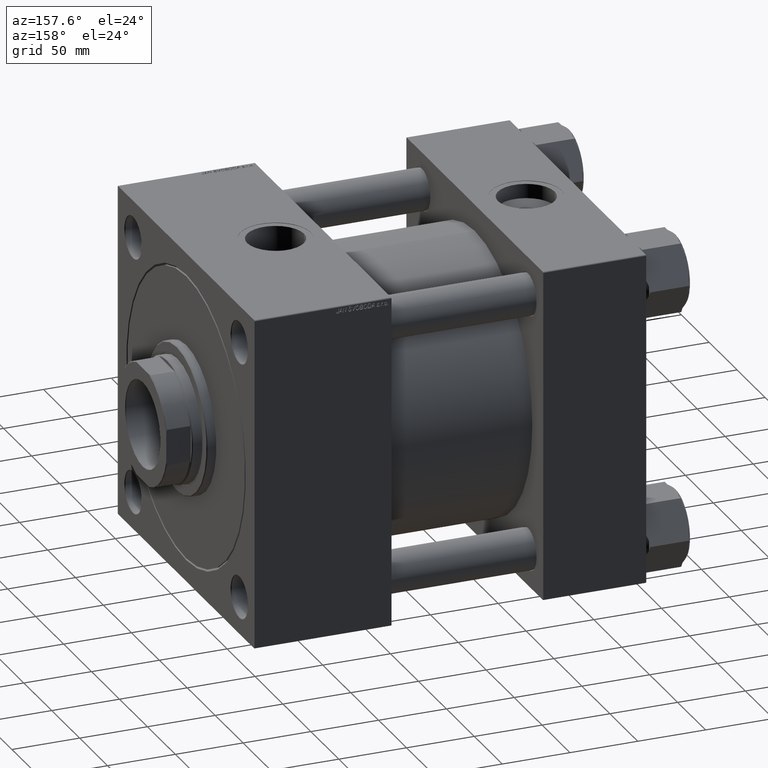
[diagram: clean part render]
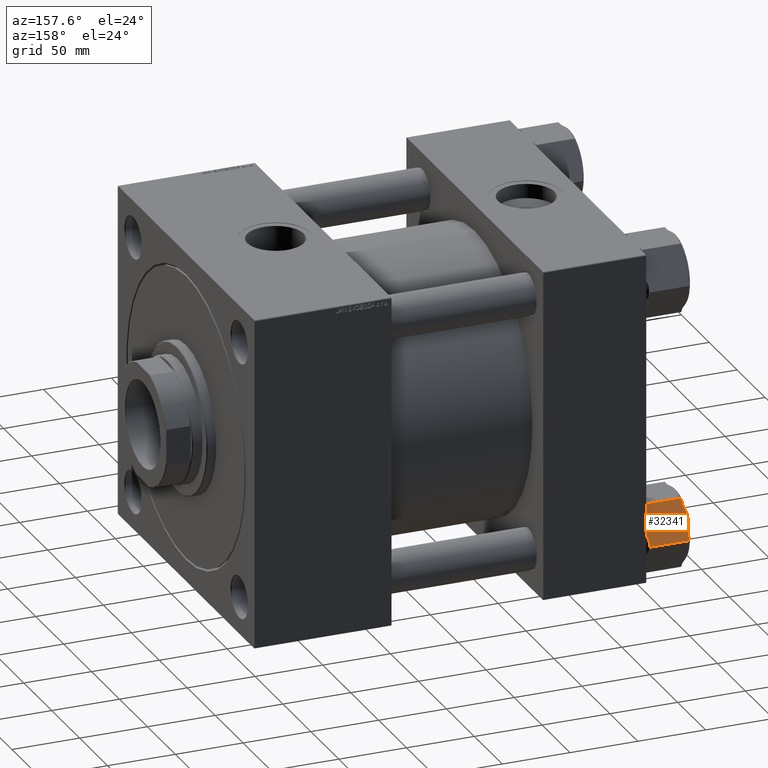
[diagram: same view with one face highlighted and labeled with its STEP entity id]
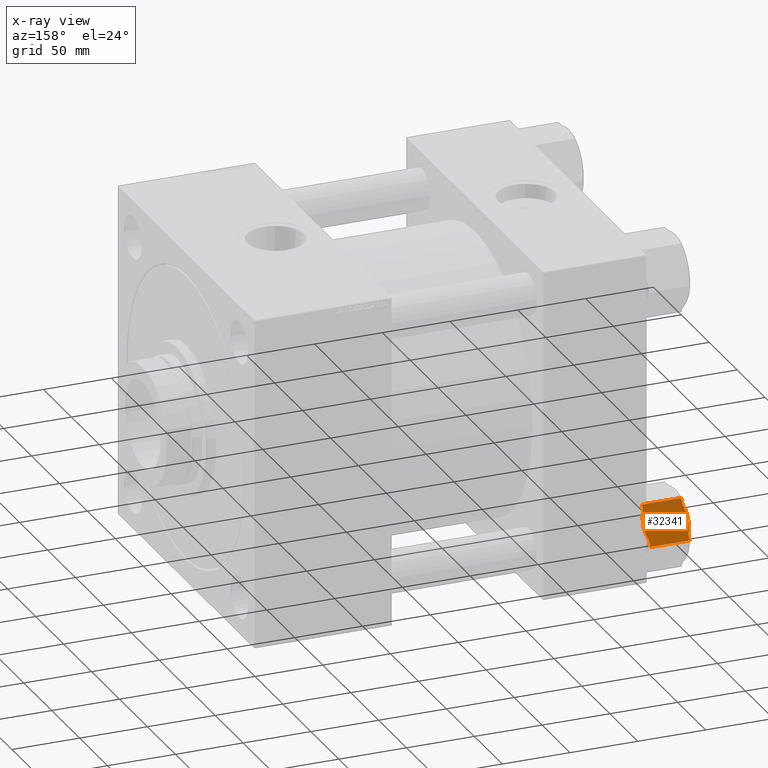
[diagram: x-ray of the same camera — body ghosted, the highlighted face saturated]
A machine part, auxiliary view. The second image highlights one B-rep face of the part: STEP entity #32341.
The next image is the same camera in x-ray: the body ghosted, the highlighted face saturated — about 0% of this face is hidden behind the body in this view.
In plain terms, the highlighted planar face has unit normal (-0, -0.866, -0.5).
Its self-contained STEP definition (entity closure, byte-faithful):
#378 = AXIS2_PLACEMENT_3D ( 'NONE', #37311, #48099, #20914 ) ;
#515 = B_SPLINE_CURVE_WITH_KNOTS ( 'NONE', 3,
 ( #27525, #31886, #47532, #43912, #12145, #40077 ),
 .UNSPECIFIED., .F., .F.,
 ( 4, 2, 4 ),
 ( 0.01051765955737597041, 0.01578241387615344007, 0.02104716819493090973 ),
 .UNSPECIFIED. ) ;
#829 = EDGE_CURVE ( 'NONE', #43507, #5416, #12755, .T. ) ;
#1455 = VERTEX_POINT ( 'NONE', #45876 ) ;
#1584 = VERTEX_POINT ( 'NONE', #47403 ) ;
#1804 = CARTESIAN_POINT ( 'NONE',  ( 26.54466212044818363, 5.326641457824901060, -31.62197758747890930 ) ) ;
#2408 = VERTEX_POINT ( 'NONE', #10961 ) ;
#3762 = LINE ( 'NONE', #19403, #6872 ) ;
#4090 = CARTESIAN_POINT ( 'NONE',  ( 24.41248883551437032, 9.019673917871283919, -0.3601606535146220089 ) ) ;
#4602 = ORIENTED_EDGE ( 'NONE', *, *, #14983, .F. ) ;
#5275 = PLANE ( 'NONE',  #378 ) ;
#5371 = B_SPLINE_CURVE_WITH_KNOTS ( 'NONE', 3,
 ( #41516, #13857, #18197, #36921, #1804, #33813 ),
 .UNSPECIFIED., .F., .F.,
 ( 4, 2, 4 ),
 ( 0.01051765955737592358, 0.01578241387615337762, 0.02104716819493083341 ),
 .UNSPECIFIED. ) ;
#5416 = VERTEX_POINT ( 'NONE', #25427 ) ;
#5710 = VECTOR ( 'NONE', #37666, 1000.000000000000114 ) ;
#5887 = LINE ( 'NONE', #22032, #5710 ) ;
#6493 = CARTESIAN_POINT ( 'NONE',  ( 21.32649141810932747, 14.36477823684317734, -32.95327330804746424 ) ) ;
#6872 = VECTOR ( 'NONE', #35028, 1000.000000000000114 ) ;
#7565 = ORIENTED_EDGE ( 'NONE', *, *, #49274, .F. ) ;
#7661 = CARTESIAN_POINT ( 'NONE',  ( 26.54539380551817374, 5.325374142108530329, -1.378568830542540313 ) ) ;
#8047 = VERTEX_POINT ( 'NONE', #10485 ) ;
#8346 = CARTESIAN_POINT ( 'NONE',  ( 29.62000000000000810, -6.572692906582623186E-15, -33.00000000000000000 ) ) ;
#10485 = CARTESIAN_POINT ( 'NONE',  ( 29.62000000000000810, -6.572692906582623186E-15, -2.000000000000001776 ) ) ;
#10961 = CARTESIAN_POINT ( 'NONE',  ( 27.37752578299570416, 3.884079278514688927, -2.000000000000000000 ) ) ;
#11512 = CARTESIAN_POINT ( 'NONE',  ( 27.37752578299570416, 3.884079278514688927, -2.000000000000000000 ) ) ;
#11700 = ORIENTED_EDGE ( 'NONE', *, *, #48517, .F. ) ;
#12145 = CARTESIAN_POINT ( 'NONE',  ( 17.88533787955183385, 20.32503100227017612, -1.378022412521090478 ) ) ;
#12444 = DIRECTION ( 'NONE',  ( -0.000000000000000000, -0.000000000000000000, 1.000000000000000000 ) ) ;
#12755 = LINE ( 'NONE', #35584, #38009 ) ;
#13857 = CARTESIAN_POINT ( 'NONE',  ( 23.10724479875434412, 11.28042290581595175, -32.99999999999998579 ) ) ;
#13940 = VERTEX_POINT ( 'NONE', #30524 ) ;
#14576 = EDGE_CURVE ( 'NONE', #1455, #8047, #16315, .T. ) ;
#14983 = EDGE_CURVE ( 'NONE', #13940, #1584, #5371, .T. ) ;
#16315 = LINE ( 'NONE', #8346, #25017 ) ;
#16865 = ORIENTED_EDGE ( 'NONE', *, *, #31419, .F. ) ;
#17459 = ORIENTED_EDGE ( 'NONE', *, *, #36845, .F. ) ;
#17795 = CARTESIAN_POINT ( 'NONE',  ( 17.88460619448185440, 20.32629831798652376, -31.62143116945745902 ) ) ;
#18197 = CARTESIAN_POINT ( 'NONE',  ( 23.98159980063226016, 9.765995618711439619, -32.81261637259790831 ) ) ;
#18914 = VERTEX_POINT ( 'NONE', #25396 ) ;
#19403 = CARTESIAN_POINT ( 'NONE',  ( 14.81000000000000583, 25.65167246009508872, -2.000000000000001776 ) ) ;
#20914 = DIRECTION ( 'NONE',  ( 0.4999999999999997224, -0.8660254037844388186, 0.000000000000000000 ) ) ;
#21694 = LINE ( 'NONE', #37833, #49142 ) ;
#22032 = CARTESIAN_POINT ( 'NONE',  ( 14.81000000000000583, 25.65167246009508872, -31.00000000000000000 ) ) ;
#22227 = ORIENTED_EDGE ( 'NONE', *, *, #829, .T. ) ;
#22330 = CARTESIAN_POINT ( 'NONE',  ( 22.21500000000001762, 12.82583623004753726, 0.000000000000000000 ) ) ;
#22988 = ORIENTED_EDGE ( 'NONE', *, *, #28771, .F. ) ;
#23299 = CARTESIAN_POINT ( 'NONE',  ( 25.70144162350698025, 6.787142200510530188, -0.8774574461467135045 ) ) ;
#24268 = ORIENTED_EDGE ( 'NONE', *, *, #14576, .F. ) ;
#25017 = VECTOR ( 'NONE', #12444, 1000.000000000000000 ) ;
#25396 = CARTESIAN_POINT ( 'NONE',  ( 17.05247421700432398, 21.76759318158037715, -2.000000000000000000 ) ) ;
#25427 = CARTESIAN_POINT ( 'NONE',  ( 14.81000000000000583, 25.65167246009508872, -2.000000000000001776 ) ) ;
#25716 = CARTESIAN_POINT ( 'NONE',  ( 17.05247421700433108, 21.76759318158035938, -31.00000000000000000 ) ) ;
#25854 = EDGE_CURVE ( 'NONE', #18914, #5416, #41395, .T. ) ;
#25975 = CARTESIAN_POINT ( 'NONE',  ( 20.45100301642624174, 15.88116862999554968, -32.77317423454463352 ) ) ;
#27382 = DIRECTION ( 'NONE',  ( -0.000000000000000000, -0.000000000000000000, 1.000000000000000000 ) ) ;
#27525 = CARTESIAN_POINT ( 'NONE',  ( 22.21500000000001762, 12.82583623004753726, 0.000000000000000000 ) ) ;
#28406 = VERTEX_POINT ( 'NONE', #49454 ) ;
#28725 = ORIENTED_EDGE ( 'NONE', *, *, #34477, .F. ) ;
#28771 = EDGE_CURVE ( 'NONE', #1584, #1455, #21694, .T. ) ;
#29061 = CARTESIAN_POINT ( 'NONE',  ( 21.76940353278334328, 13.59763195093999855, -32.99999999999999289 ) ) ;
#30524 = CARTESIAN_POINT ( 'NONE',  ( 22.21500000000000696, 12.82583623004752837, -33.00000000000000000 ) ) ;
#31419 = EDGE_CURVE ( 'NONE', #8047, #2408, #3762, .T. ) ;
#31558 = EDGE_LOOP ( 'NONE', ( #7565, #22227, #34869, #28725, #17459, #16865, #24268, #22988, #4602, #11700 ) ) ;
#31886 = CARTESIAN_POINT ( 'NONE',  ( 21.32275520124567336, 14.37124955427912454, 5.519266684309019432E-15 ) ) ;
#32017 = CARTESIAN_POINT ( 'NONE',  ( 22.21500000000001762, 12.82583623004753726, 0.000000000000000000 ) ) ;
#32341 = ADVANCED_FACE ( 'NONE', ( #49124 ), #5275, .F. ) ;
#32757 = CARTESIAN_POINT ( 'NONE',  ( 22.66059646721667065, 12.05404050915506708, 5.753047777751207114E-15 ) ) ;
#33416 = CARTESIAN_POINT ( 'NONE',  ( 18.72855837649304434, 18.86453025958451946, -32.12254255385326474 ) ) ;
#33813 = CARTESIAN_POINT ( 'NONE',  ( 27.37752578299569350, 3.884079278514706246, -31.00000000000000000 ) ) ;
#33912 = CARTESIAN_POINT ( 'NONE',  ( 22.21500000000000696, 12.82583623004752837, -33.00000000000000000 ) ) ;
#34477 = EDGE_CURVE ( 'NONE', #49049, #18914, #515, .T. ) ;
#34869 = ORIENTED_EDGE ( 'NONE', *, *, #25854, .F. ) ;
#35028 = DIRECTION ( 'NONE',  ( -0.4999999999999997224, 0.8660254037844388186, 0.000000000000000000 ) ) ;
#35584 = CARTESIAN_POINT ( 'NONE',  ( 14.81000000000000583, 25.65167246009508872, -33.00000000000000000 ) ) ;
#35865 = CARTESIAN_POINT ( 'NONE',  ( 23.97899698357378284, 9.770503830099508846, -0.2268257654553568481 ) ) ;
#36798 = CARTESIAN_POINT ( 'NONE',  ( 14.81000000000000583, 25.65167246009508872, -2.000000000000001776 ) ) ;
#36845 = EDGE_CURVE ( 'NONE', #2408, #49049, #43068, .T. ) ;
#36858 = CARTESIAN_POINT ( 'NONE',  ( 23.10350858189069001, 11.28689422325188829, -0.04672669195252834168 ) ) ;
#36921 = CARTESIAN_POINT ( 'NONE',  ( 25.70026653993363652, 6.789177504962706777, -32.12316606625578430 ) ) ;
#37311 = CARTESIAN_POINT ( 'NONE',  ( 14.81000000000000583, 25.65167246009508872, -33.00000000000000000 ) ) ;
#37584 = DIRECTION ( 'NONE',  ( 0.4999999999999997224, -0.8660254037844388186, 0.000000000000000000 ) ) ;
#37666 = DIRECTION ( 'NONE',  ( 0.4999999999999997224, -0.8660254037844388186, 0.000000000000000000 ) ) ;
#37803 = DIRECTION ( 'NONE',  ( -0.4999999999999997224, 0.8660254037844388186, 0.000000000000000000 ) ) ;
#37833 = CARTESIAN_POINT ( 'NONE',  ( 14.81000000000000583, 25.65167246009508872, -31.00000000000000000 ) ) ;
#38009 = VECTOR ( 'NONE', #27382, 1000.000000000000000 ) ;
#38103 = CARTESIAN_POINT ( 'NONE',  ( 14.81000000000000583, 25.65167246009508872, -31.00000000000000000 ) ) ;
#40077 = CARTESIAN_POINT ( 'NONE',  ( 17.05247421700432398, 21.76759318158037715, -2.000000000000000000 ) ) ;
#41395 = LINE ( 'NONE', #36798, #41659 ) ;
#41516 = CARTESIAN_POINT ( 'NONE',  ( 22.21500000000000696, 12.82583623004752837, -33.00000000000000000 ) ) ;
#41620 = B_SPLINE_CURVE_WITH_KNOTS ( 'NONE', 3,
 ( #25716, #17795, #33416, #45211, #25975, #6493, #29061, #33912 ),
 .UNSPECIFIED., .F., .F.,
 ( 4, 2, 2, 4 ),
 ( 5.641212978129335099E-07, 0.005259111839336867711, 0.007888385698356396511, 0.01051765955737592358 ),
 .UNSPECIFIED. ) ;
#41659 = VECTOR ( 'NONE', #37803, 1000.000000000000114 ) ;
#43068 = B_SPLINE_CURVE_WITH_KNOTS ( 'NONE', 3,
 ( #11512, #7661, #23299, #4090, #35865, #36858, #32757, #32017 ),
 .UNSPECIFIED., .F., .F.,
 ( 4, 2, 2, 4 ),
 ( 5.641212978359122432E-07, 0.005259111839336905875, 0.007888385698356438144, 0.01051765955737597041 ),
 .UNSPECIFIED. ) ;
#43507 = VERTEX_POINT ( 'NONE', #38103 ) ;
#43912 = CARTESIAN_POINT ( 'NONE',  ( 18.72973346006637385, 18.86249495513238017, -0.8768339337442039305 ) ) ;
#45211 = CARTESIAN_POINT ( 'NONE',  ( 20.01751116448565426, 16.63199854222377994, -32.63983934648538110 ) ) ;
#45876 = CARTESIAN_POINT ( 'NONE',  ( 29.62000000000000810, -6.572692906582623186E-15, -31.00000000000000000 ) ) ;
#47403 = CARTESIAN_POINT ( 'NONE',  ( 27.37752578299569350, 3.884079278514706246, -31.00000000000000000 ) ) ;
#47532 = CARTESIAN_POINT ( 'NONE',  ( 20.44840019936776798, 15.88567684138364200, -0.1873836274020712622 ) ) ;
#48099 = DIRECTION ( 'NONE',  ( -0.8660254037844388186, -0.4999999999999997224, 0.000000000000000000 ) ) ;
#48517 = EDGE_CURVE ( 'NONE', #28406, #13940, #41620, .T. ) ;
#49049 = VERTEX_POINT ( 'NONE', #22330 ) ;
#49124 = FACE_OUTER_BOUND ( 'NONE', #31558, .T. ) ;
#49142 = VECTOR ( 'NONE', #37584, 1000.000000000000114 ) ;
#49274 = EDGE_CURVE ( 'NONE', #43507, #28406, #5887, .T. ) ;
#49454 = CARTESIAN_POINT ( 'NONE',  ( 17.05247421700433108, 21.76759318158035938, -31.00000000000000000 ) ) ;